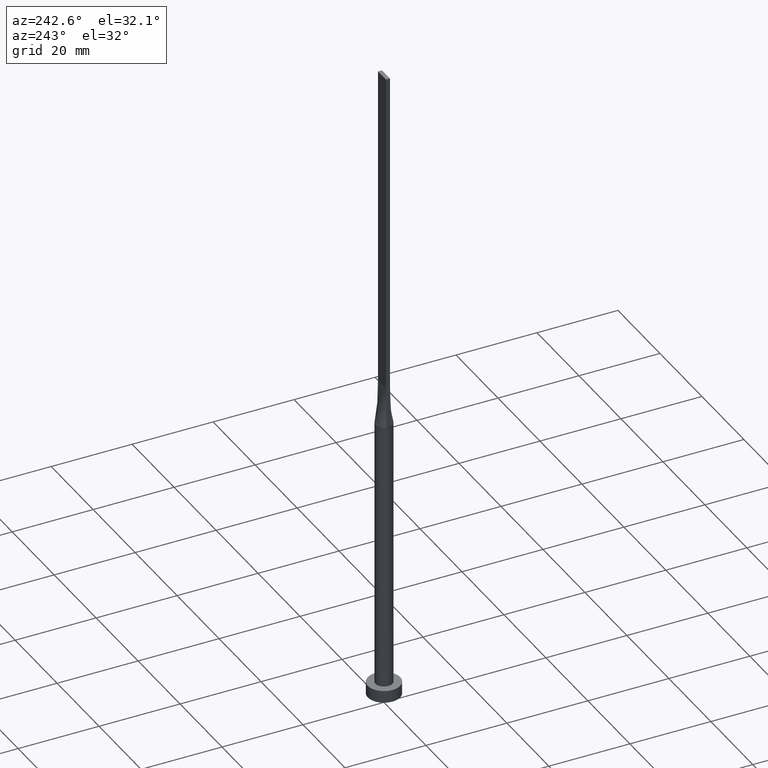
[diagram: clean part render]
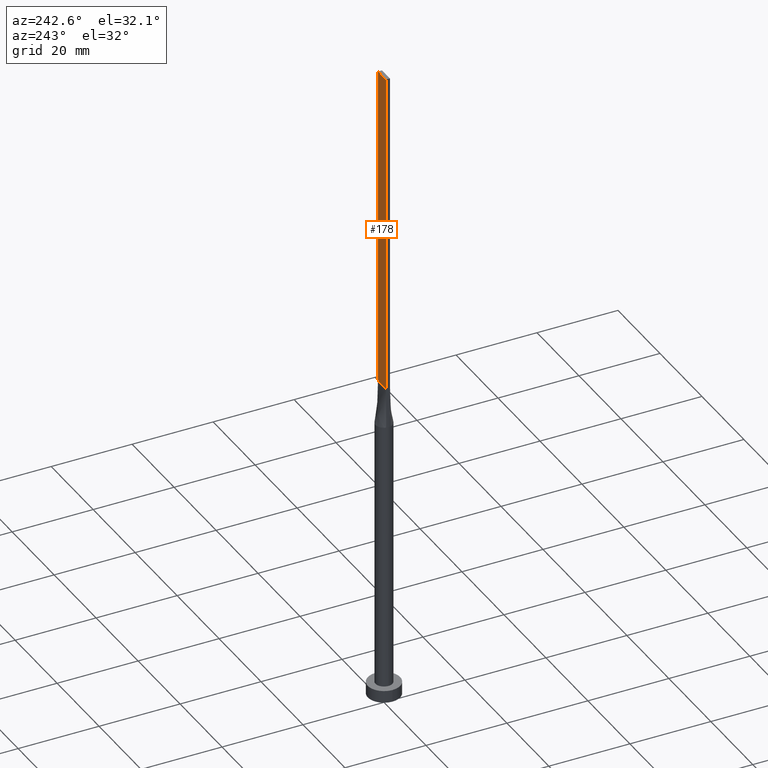
[diagram: same view with one face highlighted and labeled with its STEP entity id]
A machine part, auxiliary view. The second image highlights one B-rep face of the part: STEP entity #178.
In plain terms, the highlighted planar face has unit normal (0, -1, 0).
Its self-contained STEP definition (entity closure, byte-faithful):
#9 = VERTEX_POINT ( 'NONE', #339 ) ;
#17 = CARTESIAN_POINT ( 'NONE',  ( 1.899999999999999689, 0.5000000000000002220, 160.0000000000000000 ) ) ;
#29 = CARTESIAN_POINT ( 'NONE',  ( -1.899999999999999689, 0.5000000000000002220, 80.00000000000000000 ) ) ;
#33 = EDGE_LOOP ( 'NONE', ( #292, #116, #469, #332 ) ) ;
#34 = DIRECTION ( 'NONE',  ( -0.000000000000000000, -0.000000000000000000, -1.000000000000000000 ) ) ;
#46 = DIRECTION ( 'NONE',  ( -1.000000000000000000, -0.000000000000000000, -0.000000000000000000 ) ) ;
#97 = EDGE_CURVE ( 'NONE', #9, #425, #379, .T. ) ;
#116 = ORIENTED_EDGE ( 'NONE', *, *, #362, .F. ) ;
#121 = CARTESIAN_POINT ( 'NONE',  ( 1.899999999999999689, 0.5000000000000002220, 160.0000000000000000 ) ) ;
#122 = CARTESIAN_POINT ( 'NONE',  ( 1.899999999999999689, 0.5000000000000002220, 160.0000000000000000 ) ) ;
#153 = VECTOR ( 'NONE', #34, 1000.000000000000000 ) ;
#178 = ADVANCED_FACE ( 'NONE', ( #203 ), #213, .F. ) ;
#203 = FACE_OUTER_BOUND ( 'NONE', #33, .T. ) ;
#213 = PLANE ( 'NONE',  #480 ) ;
#251 = VECTOR ( 'NONE', #375, 1000.000000000000000 ) ;
#255 = EDGE_CURVE ( 'NONE', #9, #321, #311, .T. ) ;
#268 = CARTESIAN_POINT ( 'NONE',  ( -1.899999999999999689, 0.5000000000000002220, 80.00000000000000000 ) ) ;
#272 = EDGE_CURVE ( 'NONE', #321, #307, #413, .T. ) ;
#292 = ORIENTED_EDGE ( 'NONE', *, *, #272, .T. ) ;
#307 = VERTEX_POINT ( 'NONE', #268 ) ;
#309 = DIRECTION ( 'NONE',  ( -0.000000000000000000, -0.000000000000000000, -1.000000000000000000 ) ) ;
#311 = LINE ( 'NONE', #121, #153 ) ;
#316 = CARTESIAN_POINT ( 'NONE',  ( -1.899999999999999689, 0.5000000000000002220, 160.0000000000000000 ) ) ;
#321 = VERTEX_POINT ( 'NONE', #353 ) ;
#332 = ORIENTED_EDGE ( 'NONE', *, *, #255, .T. ) ;
#339 = CARTESIAN_POINT ( 'NONE',  ( 1.899999999999999689, 0.5000000000000002220, 160.0000000000000000 ) ) ;
#353 = CARTESIAN_POINT ( 'NONE',  ( 1.899999999999999689, 0.5000000000000002220, 80.00000000000000000 ) ) ;
#362 = EDGE_CURVE ( 'NONE', #425, #307, #450, .T. ) ;
#371 = DIRECTION ( 'NONE',  ( 0.000000000000000000, -0.000000000000000000, -1.000000000000000000 ) ) ;
#375 = DIRECTION ( 'NONE',  ( -1.000000000000000000, 0.000000000000000000, 0.000000000000000000 ) ) ;
#379 = LINE ( 'NONE', #17, #251 ) ;
#386 = VECTOR ( 'NONE', #46, 1000.000000000000000 ) ;
#413 = LINE ( 'NONE', #29, #386 ) ;
#425 = VERTEX_POINT ( 'NONE', #316 ) ;
#450 = LINE ( 'NONE', #536, #561 ) ;
#469 = ORIENTED_EDGE ( 'NONE', *, *, #97, .F. ) ;
#480 = AXIS2_PLACEMENT_3D ( 'NONE', #122, #485, #371 ) ;
#485 = DIRECTION ( 'NONE',  ( 0.000000000000000000, -1.000000000000000000, 0.000000000000000000 ) ) ;
#536 = CARTESIAN_POINT ( 'NONE',  ( -1.899999999999999689, 0.5000000000000002220, 160.0000000000000000 ) ) ;
#561 = VECTOR ( 'NONE', #309, 1000.000000000000000 ) ;